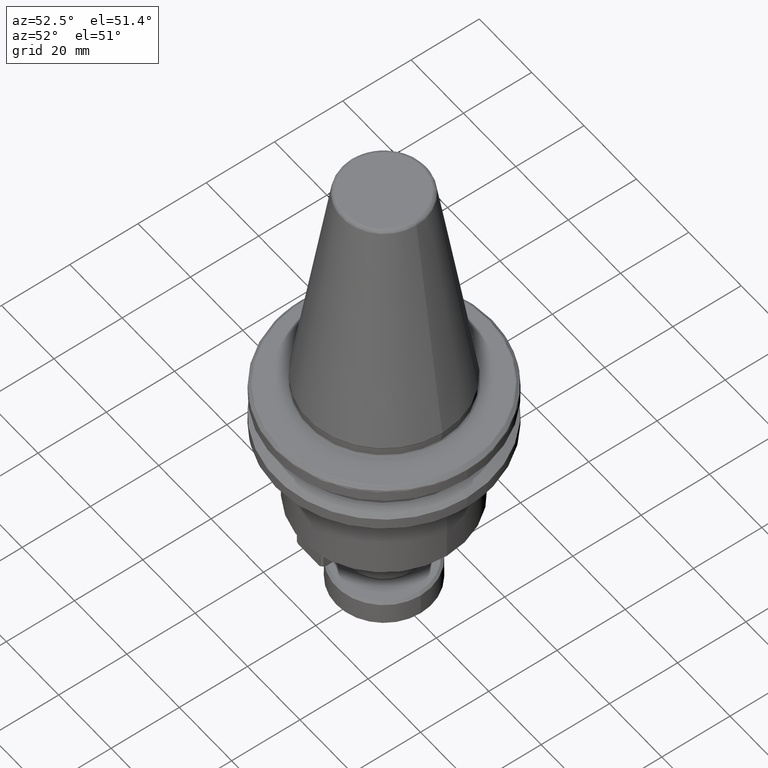
[diagram: clean part render]
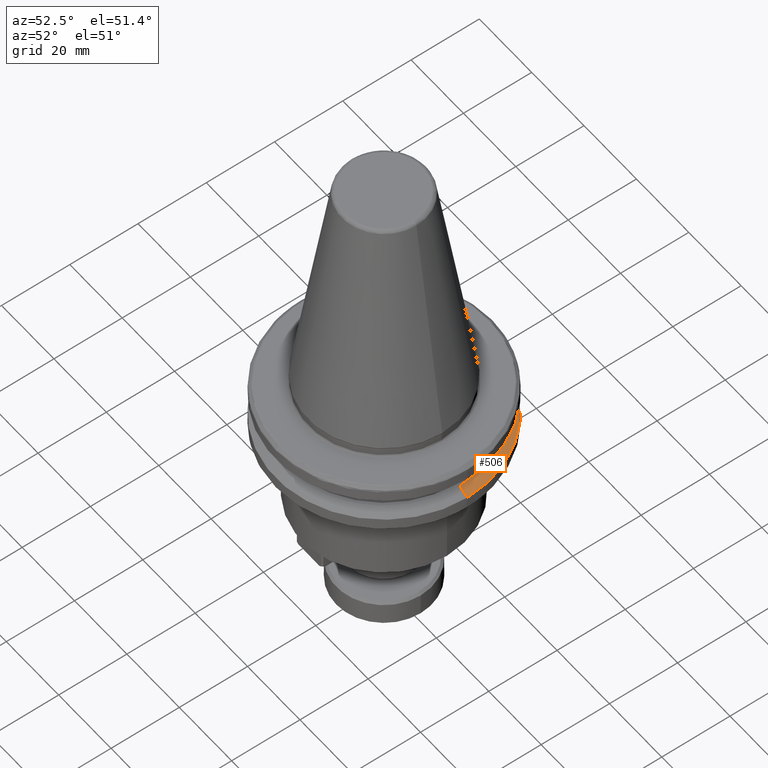
[diagram: same view with one face highlighted and labeled with its STEP entity id]
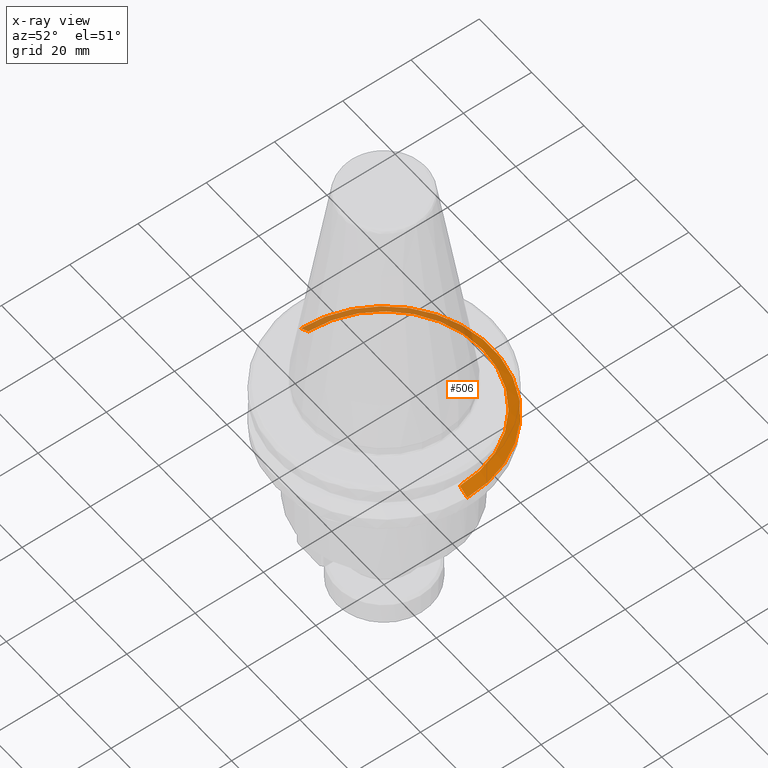
[diagram: x-ray of the same camera — body ghosted, the highlighted face saturated]
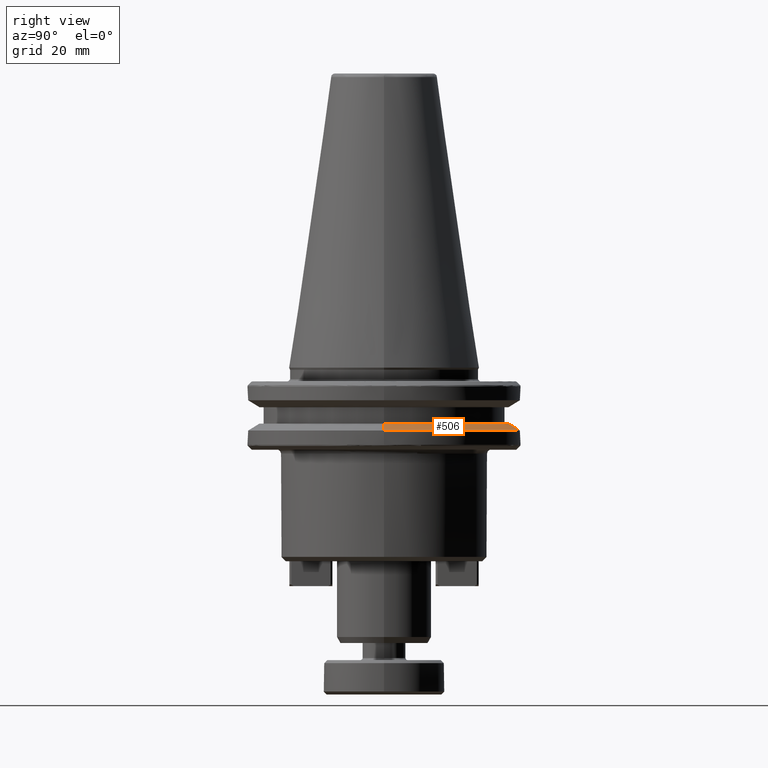
[diagram: same view with one face highlighted and labeled with its STEP entity id]
A machine part, auxiliary view. The second image highlights one B-rep face of the part: STEP entity #506.
The next image is the same camera in x-ray: the body ghosted, the highlighted face saturated — about 31% of this face is hidden behind the body in this view.
A second angle (right view) of the same face is appended — the face is thin or edge-on in the first view.
In plain terms, the highlighted conical surface has half-angle 60 deg.
Its self-contained STEP definition (entity closure, byte-faithful):
#104 = ORIENTED_EDGE ( 'NONE', *, *, #2376, .T. ) ;
#109 = CONICAL_SURFACE ( 'NONE', #490, 31.75000000000000000, 1.047197551196604300 ) ;
#302 = DIRECTION ( 'NONE',  ( 0.0000000000000000000, 0.0000000000000000000, -1.000000000000000000 ) ) ;
#490 = AXIS2_PLACEMENT_3D ( 'NONE', #2510, #302, #1272 ) ;
#506 = ADVANCED_FACE ( 'NONE', ( #3488 ), #109, .T. ) ;
#861 = AXIS2_PLACEMENT_3D ( 'NONE', #3654, #1738, #3993 ) ;
#967 = CARTESIAN_POINT ( 'NONE',  ( -31.75000000000000000, 3.888253587292846500E-015, -14.62183664205671200 ) ) ;
#1272 = DIRECTION ( 'NONE',  ( -1.000000000000000000, 0.0000000000000000000, 0.0000000000000000000 ) ) ;
#1464 = CARTESIAN_POINT ( 'NONE',  ( 0.0000000000000000000, 0.0000000000000000000, -14.62183664205671200 ) ) ;
#1536 = VERTEX_POINT ( 'NONE', #2031 ) ;
#1568 = EDGE_CURVE ( 'NONE', #3989, #1780, #3368, .T. ) ;
#1634 = CIRCLE ( 'NONE', #4057, 31.75000000000000000 ) ;
#1738 = DIRECTION ( 'NONE',  ( 0.0000000000000000000, 0.0000000000000000000, -1.000000000000000000 ) ) ;
#1780 = VERTEX_POINT ( 'NONE', #3754 ) ;
#1783 = DIRECTION ( 'NONE',  ( -1.000000000000000000, 0.0000000000000000000, 0.0000000000000000000 ) ) ;
#1874 = CARTESIAN_POINT ( 'NONE',  ( 31.75000000000000000, 3.888253587292846500E-015, -14.62183664205671200 ) ) ;
#1922 = CARTESIAN_POINT ( 'NONE',  ( -31.75000000000000000, 0.0000000000000000000, -14.62183664205671200 ) ) ;
#2031 = CARTESIAN_POINT ( 'NONE',  ( 31.75000000000000000, 0.0000000000000000000, -14.62183664205671200 ) ) ;
#2235 = LINE ( 'NONE', #1874, #3086 ) ;
#2376 = EDGE_CURVE ( 'NONE', #1780, #1536, #2235, .T. ) ;
#2398 = ORIENTED_EDGE ( 'NONE', *, *, #2629, .T. ) ;
#2440 = ORIENTED_EDGE ( 'NONE', *, *, #2768, .F. ) ;
#2488 = DIRECTION ( 'NONE',  ( 0.8660254037844420400, 1.060575238724911000E-016, -0.4999999999999943900 ) ) ;
#2510 = CARTESIAN_POINT ( 'NONE',  ( 0.0000000000000000000, 0.0000000000000000000, -14.62183664205671200 ) ) ;
#2512 = ORIENTED_EDGE ( 'NONE', *, *, #1568, .T. ) ;
#2575 = EDGE_LOOP ( 'NONE', ( #2512, #104, #2398, #2440 ) ) ;
#2629 = EDGE_CURVE ( 'NONE', #1536, #3800, #1634, .T. ) ;
#2768 = EDGE_CURVE ( 'NONE', #3989, #3800, #3239, .T. ) ;
#3086 = VECTOR ( 'NONE', #2488, 999.9999999999998900 ) ;
#3239 = LINE ( 'NONE', #1922, #3796 ) ;
#3368 = CIRCLE ( 'NONE', #861, 28.94089653438084400 ) ;
#3488 = FACE_OUTER_BOUND ( 'NONE', #2575, .T. ) ;
#3654 = CARTESIAN_POINT ( 'NONE',  ( 0.0000000000000000000, 0.0000000000000000000, -13.00000000000000500 ) ) ;
#3699 = DIRECTION ( 'NONE',  ( -0.0000000000000000000, -0.0000000000000000000, 1.000000000000000000 ) ) ;
#3754 = CARTESIAN_POINT ( 'NONE',  ( 28.94089653438084400, 3.716245608910634800E-015, -13.00000000000000500 ) ) ;
#3796 = VECTOR ( 'NONE', #3856, 999.9999999999998900 ) ;
#3800 = VERTEX_POINT ( 'NONE', #967 ) ;
#3856 = DIRECTION ( 'NONE',  ( -0.8660254037844420400, 0.0000000000000000000, -0.4999999999999943900 ) ) ;
#3938 = CARTESIAN_POINT ( 'NONE',  ( -28.94089653438084400, 0.0000000000000000000, -13.00000000000000500 ) ) ;
#3989 = VERTEX_POINT ( 'NONE', #3938 ) ;
#3993 = DIRECTION ( 'NONE',  ( -1.000000000000000000, 0.0000000000000000000, 0.0000000000000000000 ) ) ;
#4057 = AXIS2_PLACEMENT_3D ( 'NONE', #1464, #3699, #1783 ) ;